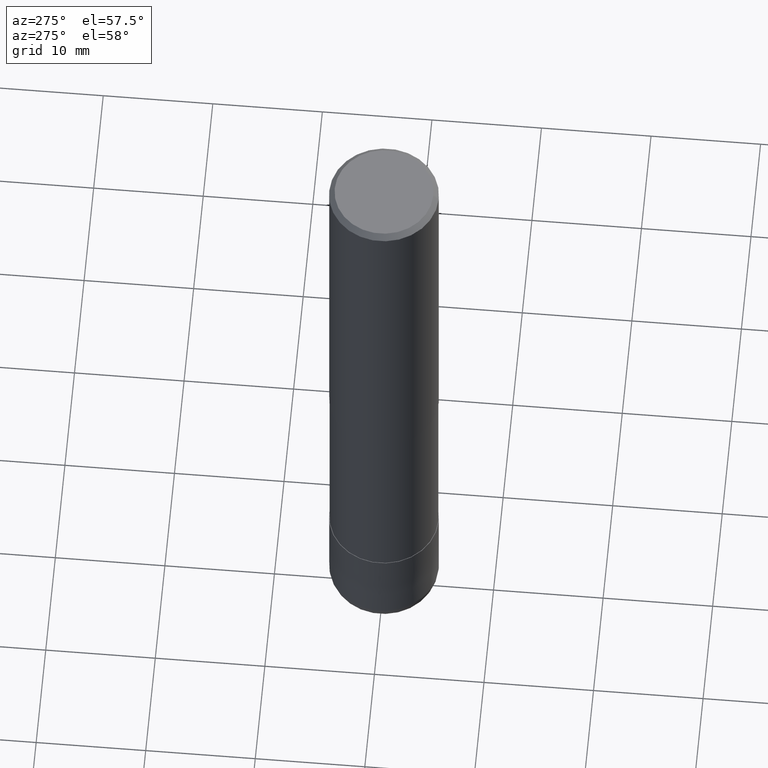
[diagram: clean part render]
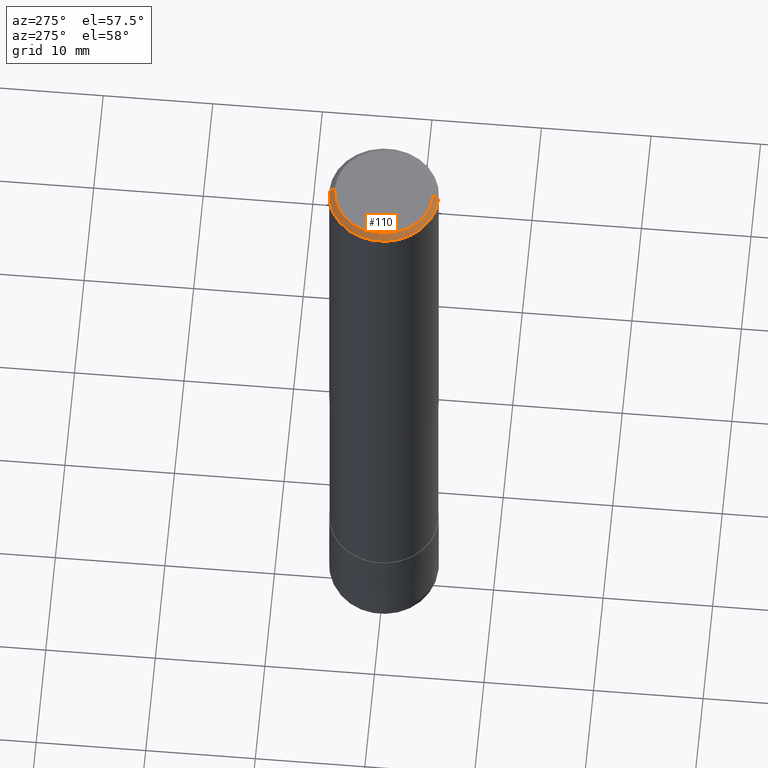
[diagram: same view with one face highlighted and labeled with its STEP entity id]
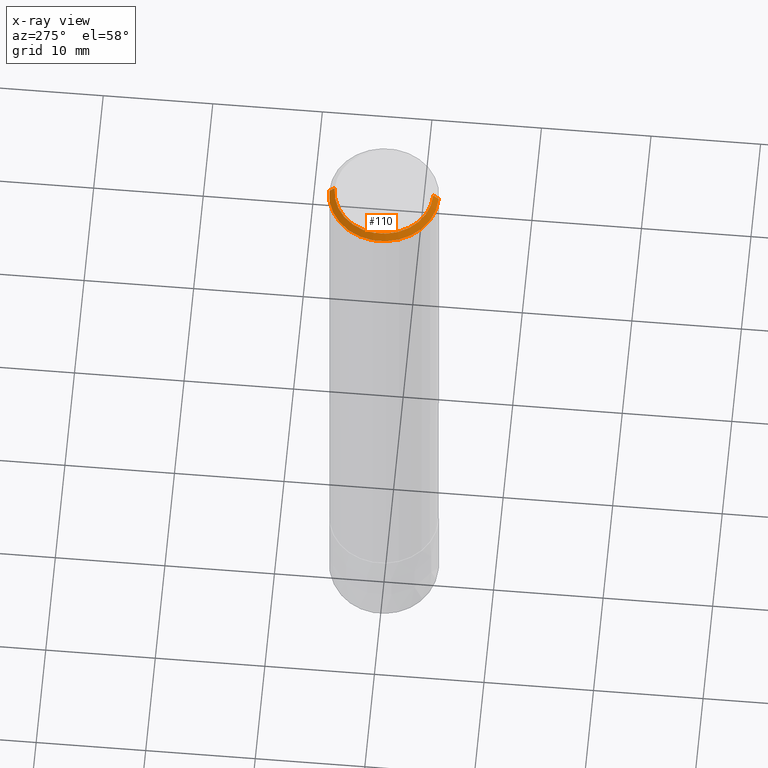
[diagram: x-ray of the same camera — body ghosted, the highlighted face saturated]
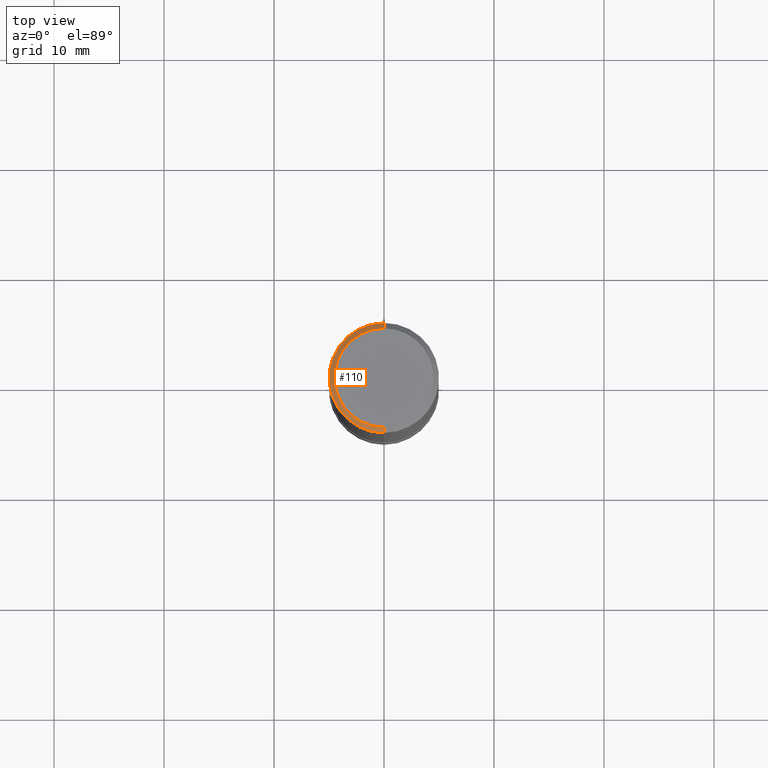
[diagram: same view with one face highlighted and labeled with its STEP entity id]
A machine part, auxiliary view. The second image highlights one B-rep face of the part: STEP entity #110.
The next image is the same camera in x-ray: the body ghosted, the highlighted face saturated — about 0% of this face is hidden behind the body in this view.
A second angle (top view) of the same face is appended — the face is thin or edge-on in the first view.
In plain terms, the highlighted conical surface has half-angle 45 deg.
Its self-contained STEP definition (entity closure, byte-faithful):
#100=EDGE_CURVE('',#156,#192,#237,.T.);
#110=ADVANCED_FACE('',(#250),#251,.T.);
#128=EDGE_CURVE('',#186,#192,#272,.T.);
#144=VERTEX_POINT('',#290);
#156=VERTEX_POINT('',#302);
#158=EDGE_CURVE('',#144,#156,#304,.T.);
#176=EDGE_CURVE('',#186,#144,#325,.T.);
#186=VERTEX_POINT('',#337);
#192=VERTEX_POINT('',#343);
#237=LINE('',#387,#388);
#250=FACE_OUTER_BOUND('',#401,.T.);
#251=CONICAL_SURFACE('',#402,4.75,0.785398163397448);
#272=CIRCLE('',#427,5.0);
#290=CARTESIAN_POINT('',(5.5107285922007E-016,-4.5,0.0));
#302=CARTESIAN_POINT('',(0.0,4.5,0.0));
#304=CIRCLE('',#465,4.5);
#325=LINE('',#493,#494);
#337=CARTESIAN_POINT('',(6.12303176911189E-016,-5.0,-0.5));
#343=CARTESIAN_POINT('',(0.0,5.0,-0.5));
#387=CARTESIAN_POINT('',(-5.81688018065629E-016,4.75,-0.25));
#388=VECTOR('',#552,1.0);
#401=EDGE_LOOP('',(#574,#575,#576,#577));
#402=AXIS2_PLACEMENT_3D('',#578,#579,#580);
#427=AXIS2_PLACEMENT_3D('',#614,#615,#616);
#465=AXIS2_PLACEMENT_3D('',#639,#640,#641);
#493=CARTESIAN_POINT('',(5.81688018065629E-016,-4.75,-0.25));
#494=VECTOR('',#669,1.0);
#552=DIRECTION('',(-8.65927457071936E-017,0.707106781186548,-0.707106781186548));
#574=ORIENTED_EDGE('',*,*,#100,.T.);
#575=ORIENTED_EDGE('',*,*,#128,.F.);
#576=ORIENTED_EDGE('',*,*,#176,.T.);
#577=ORIENTED_EDGE('',*,*,#158,.T.);
#578=CARTESIAN_POINT('',(0.0,0.0,-0.25));
#579=DIRECTION('',(0.0,-0.0,-1.0));
#580=DIRECTION('',(0.0,1.0,0.0));
#614=CARTESIAN_POINT('',(0.0,0.0,-0.5));
#615=DIRECTION('',(0.0,0.0,-1.0));
#616=DIRECTION('',(0.0,1.0,0.0));
#639=CARTESIAN_POINT('',(0.0,0.0,0.0));
#640=DIRECTION('',(0.0,0.0,-1.0));
#641=DIRECTION('',(0.0,1.0,0.0));
#669=DIRECTION('',(-8.65927457071936E-017,0.707106781186548,0.707106781186548));